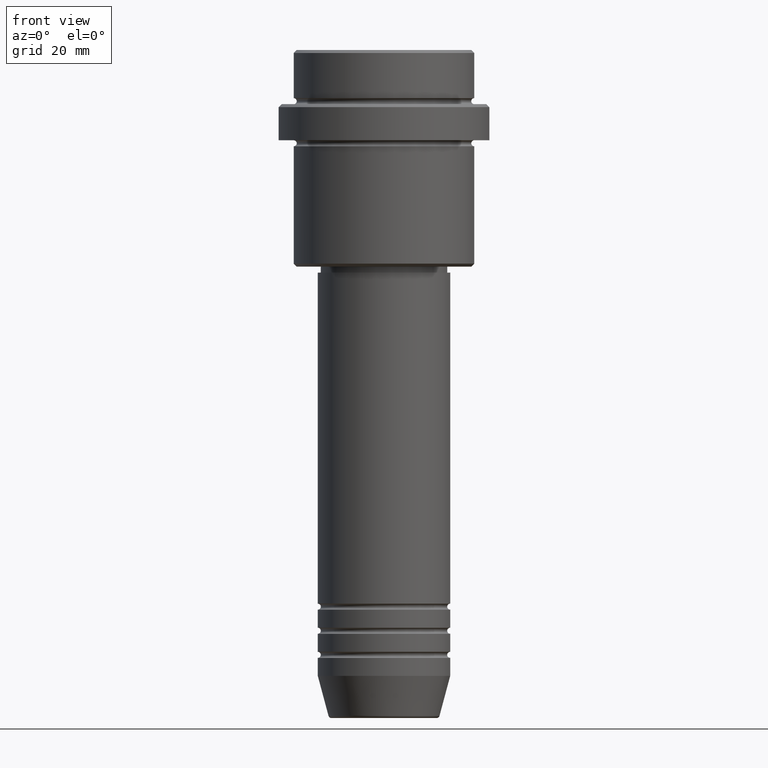
[diagram: clean part render]
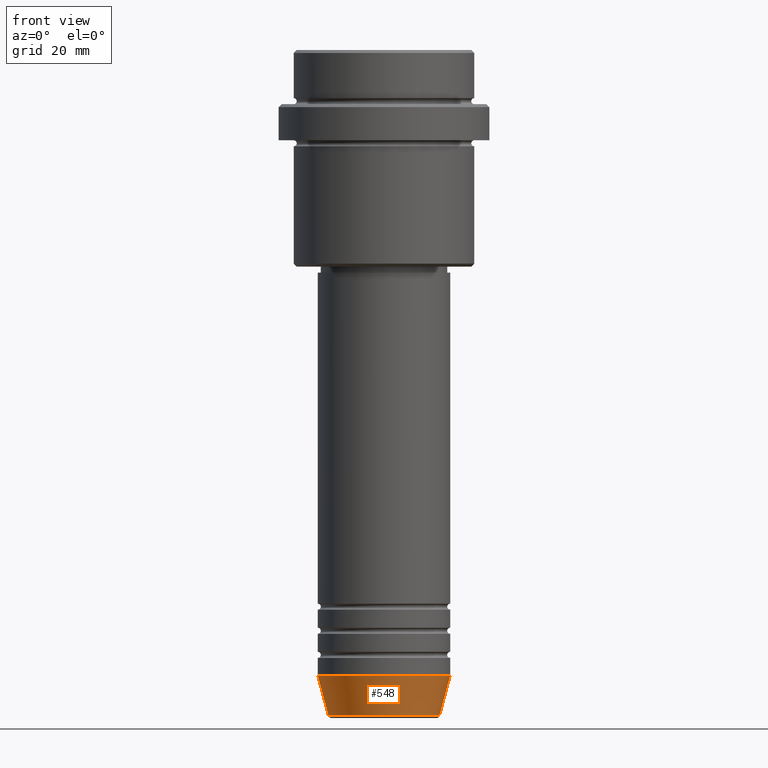
[diagram: same view with one face highlighted and labeled with its STEP entity id]
A machine part, front view. The second image highlights one B-rep face of the part: STEP entity #548.
In plain terms, the highlighted conical surface has half-angle 15 deg.
Its self-contained STEP definition (entity closure, byte-faithful):
#5 = DIRECTION ( 'NONE',  ( -0.000000000000000000, -0.000000000000000000, 1.000000000000000000 ) ) ;
#70 = DIRECTION ( 'NONE',  ( -0.000000000000000000, -0.000000000000000000, 1.000000000000000000 ) ) ;
#108 = CIRCLE ( 'NONE', #1032, 11.00000000000000000 ) ;
#126 = EDGE_CURVE ( 'NONE', #846, #1180, #1148, .T. ) ;
#150 = ORIENTED_EDGE ( 'NONE', *, *, #613, .T. ) ;
#305 = CONICAL_SURFACE ( 'NONE', #986, 11.00000000000000000, 0.2617993877991505181 ) ;
#360 = VERTEX_POINT ( 'NONE', #863 ) ;
#391 = DIRECTION ( 'NONE',  ( 0.2588190451025217942, 0.000000000000000000, 0.9659258262890679791 ) ) ;
#455 = CIRCLE ( 'NONE', #1258, 9.223655072137189492 ) ;
#504 = ORIENTED_EDGE ( 'NONE', *, *, #1366, .F. ) ;
#513 = LINE ( 'NONE', #953, #1196 ) ;
#548 = ADVANCED_FACE ( 'NONE', ( #1049 ), #305, .T. ) ;
#613 = EDGE_CURVE ( 'NONE', #360, #846, #455, .T. ) ;
#614 = CARTESIAN_POINT ( 'NONE',  ( 11.00000000000000000, 0.000000000000000000, -104.0000000000000000 ) ) ;
#673 = DIRECTION ( 'NONE',  ( 1.000000000000000000, 0.000000000000000000, 0.000000000000000000 ) ) ;
#685 = CARTESIAN_POINT ( 'NONE',  ( 0.000000000000000000, 0.000000000000000000, -104.0000000000000000 ) ) ;
#713 = CARTESIAN_POINT ( 'NONE',  ( 0.000000000000000000, 0.000000000000000000, -104.0000000000000000 ) ) ;
#735 = VECTOR ( 'NONE', #391, 1000.000000000000000 ) ;
#752 = ORIENTED_EDGE ( 'NONE', *, *, #126, .T. ) ;
#759 = CARTESIAN_POINT ( 'NONE',  ( 9.223655072137189492, 0.000000000000000000, -110.6294095225512564 ) ) ;
#782 = DIRECTION ( 'NONE',  ( 1.000000000000000000, 0.000000000000000000, 0.000000000000000000 ) ) ;
#795 = CARTESIAN_POINT ( 'NONE',  ( -11.00000000000000000, 1.347111479062088405E-15, -104.0000000000000000 ) ) ;
#846 = VERTEX_POINT ( 'NONE', #759 ) ;
#863 = CARTESIAN_POINT ( 'NONE',  ( -9.223655072137189492, 1.238341722557647004E-15, -110.6294095225512564 ) ) ;
#953 = CARTESIAN_POINT ( 'NONE',  ( -11.00000000000000000, 1.347111479062088405E-15, -104.0000000000000000 ) ) ;
#975 = ORIENTED_EDGE ( 'NONE', *, *, #1131, .F. ) ;
#986 = AXIS2_PLACEMENT_3D ( 'NONE', #713, #70, #1274 ) ;
#1026 = VERTEX_POINT ( 'NONE', #795 ) ;
#1032 = AXIS2_PLACEMENT_3D ( 'NONE', #685, #1112, #673 ) ;
#1049 = FACE_OUTER_BOUND ( 'NONE', #1182, .T. ) ;
#1112 = DIRECTION ( 'NONE',  ( -0.000000000000000000, -0.000000000000000000, 1.000000000000000000 ) ) ;
#1131 = EDGE_CURVE ( 'NONE', #1026, #1180, #108, .T. ) ;
#1148 = LINE ( 'NONE', #1372, #735 ) ;
#1180 = VERTEX_POINT ( 'NONE', #614 ) ;
#1182 = EDGE_LOOP ( 'NONE', ( #504, #150, #752, #975 ) ) ;
#1196 = VECTOR ( 'NONE', #1417, 1000.000000000000000 ) ;
#1202 = CARTESIAN_POINT ( 'NONE',  ( 0.000000000000000000, 0.000000000000000000, -110.6294095225512564 ) ) ;
#1258 = AXIS2_PLACEMENT_3D ( 'NONE', #1202, #5, #782 ) ;
#1274 = DIRECTION ( 'NONE',  ( 1.000000000000000000, 0.000000000000000000, 0.000000000000000000 ) ) ;
#1366 = EDGE_CURVE ( 'NONE', #360, #1026, #513, .T. ) ;
#1372 = CARTESIAN_POINT ( 'NONE',  ( 11.00000000000000000, 0.000000000000000000, -104.0000000000000000 ) ) ;
#1417 = DIRECTION ( 'NONE',  ( -0.2588190451025217942, 3.169619151431777884E-17, 0.9659258262890679791 ) ) ;